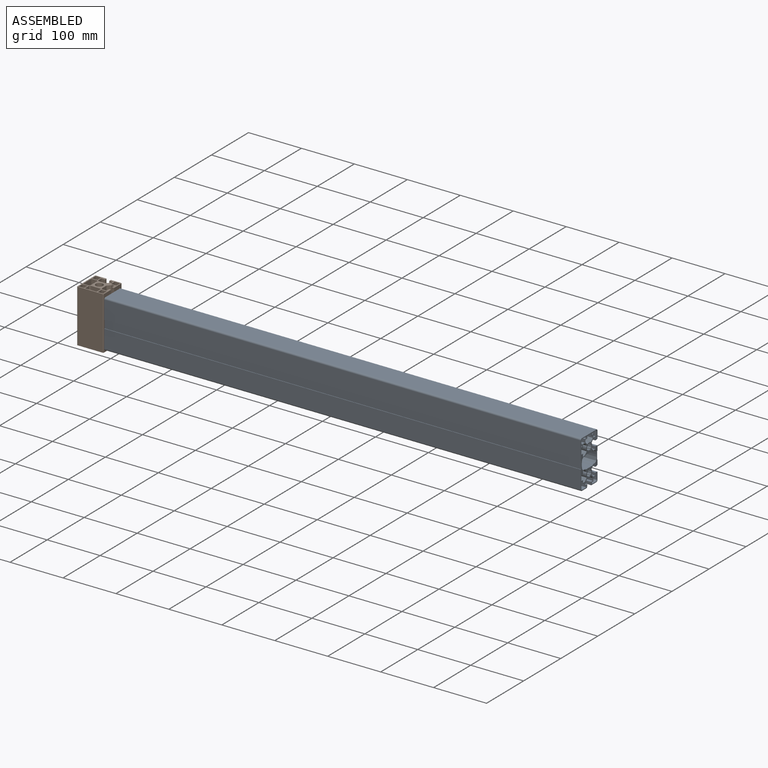
[diagram: assembled view]
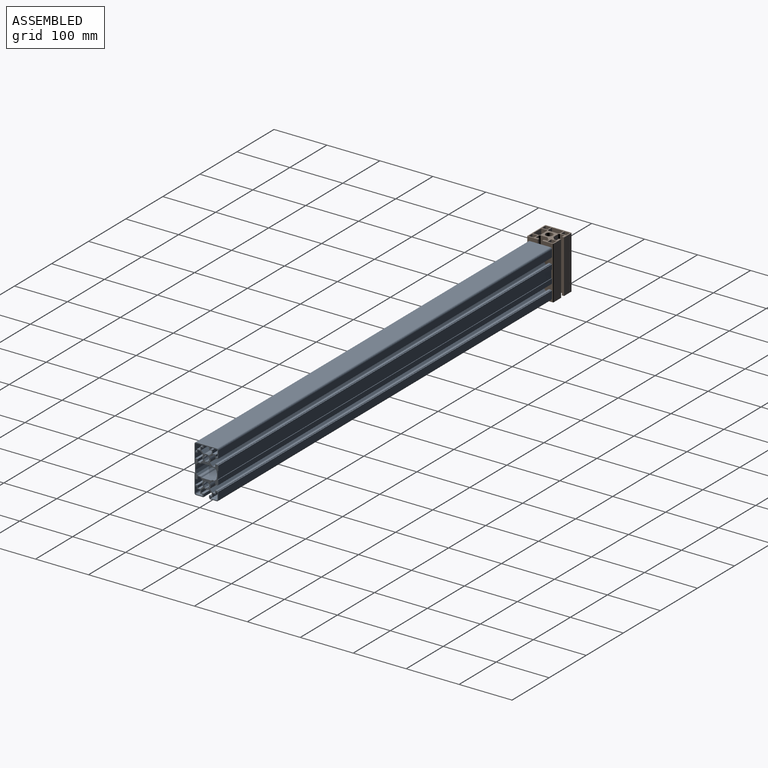
[diagram: assembled view, second angle]
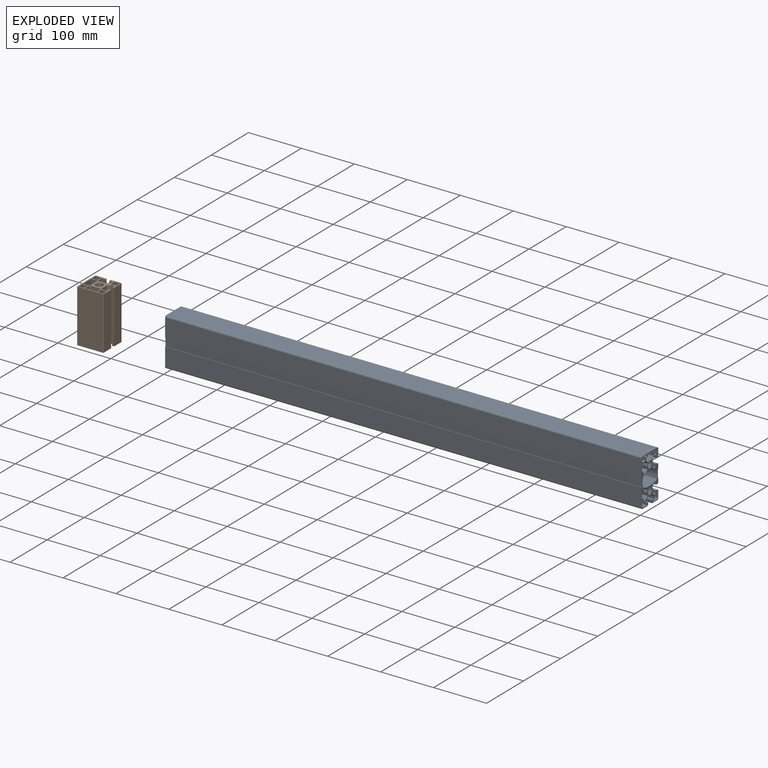
[diagram: exploded view]
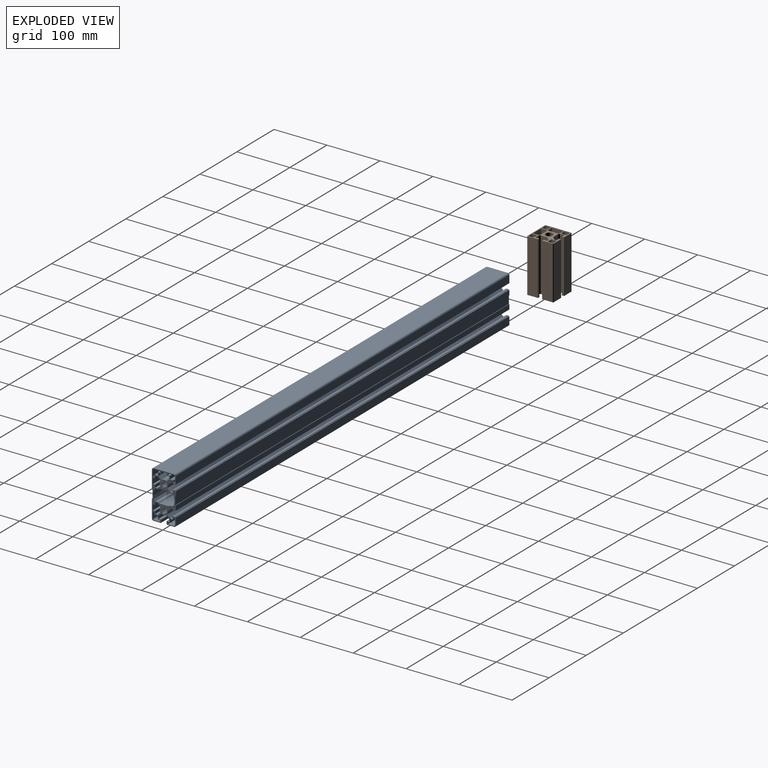
[diagram: exploded view, second angle]
ASSEMBLY  parts=2 mates=2
PART A: 210 faces, bbox 900x90x45 mm
  f0: cylinder r=8mm len=900mm, axis (-1,0,0), area 9202.1mm2, adj f1,f9,f208,f209
  f1: plane 900x5.28mm, normal (0,-0.71,0.71), area 6718.6mm2, adj f0,f2,f208,f209
  f2: plane 900x4.8mm, normal (0,0,1), area 4320mm2, adj f1,f3,f208,f209
  f3: plane 900x5.05mm, normal (0,1,0), area 4545mm2, adj f2,f4,f208,f209
  f4: plane 900x4.5mm, normal (0,0,1), area 4050mm2, adj f3,f5,f208,f209
  f5: plane 900x10mm, normal (0,1,0), area 9000mm2, adj f4,f6,f208,f209
  f6: plane 900x4.5mm, normal (0,0,-1), area 4050mm2, adj f5,f7,f208,f209
  f7: plane 900x5.05mm, normal (0,1,0), area 4545mm2, adj f6,f8,f208,f209
  f8: plane 900x4.8mm, normal (0,0,-1), area 4320mm2, adj f7,f9,f208,f209
  f9: plane 900x5.28mm, normal (0,-0.71,-0.71), area 6718.6mm2, adj f0,f8,f208,f209
  f10: plane 900x5.28mm, normal (0,0.71,-0.71), area 6718.6mm2, adj f11,f19,f208,f209
  f11: cylinder r=8mm len=900mm, axis (-1,0,0), area 9202.1mm2, adj f10,f12,f208,f209
  f12: plane 900x5.28mm, normal (0,-0.71,-0.71), area 6718.6mm2, adj f11,f13,f208,f209
  f13: plane 900x4.8mm, normal (0,-1,0), area 4320mm2, adj f12,f14,f208,f209
  f14: plane 900x5.05mm, normal (0,0,1), area 4545mm2, adj f13,f15,f208,f209
  f15: plane 900x4.5mm, normal (0,-1,0), area 4050mm2, adj f14,f16,f208,f209
  f16: plane 900x10mm, normal (0,0,1), area 9000mm2, adj f15,f17,f208,f209
  f17: plane 900x4.5mm, normal (0,1,0), area 4050mm2, adj f16,f18,f208,f209
  f18: plane 900x5.05mm, normal (0,0,1), area 4545mm2, adj f17,f19,f208,f209
  f19: plane 900x4.8mm, normal (0,1,0), area 4320mm2, adj f10,f18,f208,f209
  f20: plane 900x5.28mm, normal (0,-0.71,-0.71), area 6718.6mm2, adj f21,f29,f208,f209
  f21: cylinder r=8mm len=900mm, axis (1,0,0), area 9202.1mm2, adj f20,f22,f208,f209
  f22: plane 900x5.28mm, normal (0,0.71,-0.71), area 6718.6mm2, adj f21,f23,f208,f209
  f23: plane 900x4.8mm, normal (0,1,0), area 4320mm2, adj f22,f24,f208,f209
  f24: plane 900x5.05mm, normal (0,0,1), area 4545mm2, adj f23,f25,f208,f209
  f25: plane 900x4.5mm, normal (0,1,0), area 4050mm2, adj f24,f26,f208,f209
  f26: plane 900x10mm, normal (0,0,1), area 9000mm2, adj f25,f27,f208,f209
  f27: plane 900x4.5mm, normal (0,-1,0), area 4050mm2, adj f26,f28,f208,f209
  f28: plane 900x5.05mm, normal (0,0,1), area 4545mm2, adj f27,f29,f208,f209
  f29: plane 900x4.8mm, normal (0,-1,0), area 4320mm2, adj f20,f28,f208,f209
  f30: plane 900x4.05mm, normal (0,1,0), area 3645mm2, adj f31,f38,f208,f209
  f31: plane 900x3mm, normal (0,0,-1), area 2700mm2, adj f30,f32,f208,f209
  f32: plane 900x11mm, normal (0,-1,0), area 9900mm2, adj f31,f33,f208,f209
  f33: cylinder r=2.5mm len=900mm, axis (-1,0,0), area 3534.3mm2, adj f32,f34,f208,f209
  f34: plane 900x11mm, normal (0,0,1), area 9900mm2, adj f33,f35,f208,f209
  f35: plane 900x3mm, normal (0,1,0), area 2700mm2, adj f34,f36,f208,f209
  f36: plane 900x4.05mm, normal (0,0,-1), area 3645mm2, adj f35,f37,f208,f209
  f37: plane 900x6.45mm, normal (0,1,0), area 5805mm2, adj f36,f38,f208,f209
  f38: plane 900x6.45mm, normal (0,0,-1), area 5805mm2, adj f30,f37,f208,f209
  f39: plane 900x4.05mm, normal (0,-1,0), area 3645mm2, adj f40,f47,f208,f209
  f40: plane 900x3mm, normal (0,0,1), area 2700mm2, adj f39,f41,f208,f209
  f41: plane 900x11mm, normal (0,1,0), area 9900mm2, adj f40,f42,f208,f209
  f42: cylinder r=2.5mm len=900mm, axis (-1,0,0), area 3534.3mm2, adj f41,f43,f208,f209
  f43: plane 900x11mm, normal (0,0,-1), area 9900mm2, adj f42,f44,f208,f209
  f44: plane 900x3mm, normal (0,-1,0), area 2700mm2, adj f43,f45,f208,f209
  f45: plane 900x4.05mm, normal (0,0,1), area 3645mm2, adj f44,f46,f208,f209
  f46: plane 900x6.45mm, normal (0,-1,0), area 5805mm2, adj f45,f47,f208,f209
  f47: plane 900x6.45mm, normal (0,0,1), area 5805mm2, adj f39,f46,f208,f209
  f48: plane 900x4.05mm, normal (0,1,0), area 3645mm2, adj f49,f56,f208,f209
  f49: plane 900x3mm, normal (0,0,1), area 2700mm2, adj f48,f50,f208,f209
  f50: plane 900x11mm, normal (0,-1,0), area 9900mm2, adj f49,f51,f208,f209
  f51: cylinder r=2.5mm len=900mm, axis (1,0,0), area 3534.3mm2, adj f50,f52,f208,f209
  f52: plane 900x11mm, normal (0,0,-1), area 9900mm2, adj f51,f53,f208,f209
  f53: plane 900x3mm, normal (0,1,0), area 2700mm2, adj f52,f54,f208,f209
  f54: plane 900x4.05mm, normal (0,0,1), area 3645mm2, adj f53,f55,f208,f209
  f55: plane 900x6.45mm, normal (0,1,0), area 5805mm2, adj f54,f56,f208,f209
  f56: plane 900x6.45mm, normal (0,0,1), area 5805mm2, adj f48,f55,f208,f209
  f57: plane 900x4.05mm, normal (0,-1,0), area 3645mm2, adj f58,f65,f208,f209
  f58: plane 900x3mm, normal (0,0,-1), area 2700mm2, adj f57,f59,f208,f209
  f59: plane 900x11mm, normal (0,1,0), area 9900mm2, adj f58,f60,f208,f209
  f60: cylinder r=2.5mm len=900mm, axis (1,0,0), area 3534.3mm2, adj f59,f61,f208,f209
  f61: plane 900x11mm, normal (0,0,1), area 9900mm2, adj f60,f62,f208,f209
  f62: plane 900x3mm, normal (0,-1,0), area 2700mm2, adj f61,f63,f208,f209
  f63: plane 900x4.05mm, normal (0,0,-1), area 3645mm2, adj f62,f64,f208,f209
  f64: plane 900x6.45mm, normal (0,-1,0), area 5805mm2, adj f63,f65,f208,f209
  f65: plane 900x6.45mm, normal (0,0,-1), area 5805mm2, adj f57,f64,f208,f209
  f66: plane 900x5.23mm, normal (0,1,0), area 4703.6mm2, adj f67,f85,f208,f209
  f67: plane 900x3mm, normal (0,0.71,-0.71), area 3820mm2, adj f66,f68,f208,f209
  f68: plane 900x6.05mm, normal (0,0.19,-0.98), area 5545.9mm2, adj f67,f69,f208,f209
  f69: plane 900x3.79mm, normal (0,0,-1), area 3413.6mm2, adj f68,f70,f208,f209
  f70: plane 900x6.05mm, normal (0,-0.19,-0.98), area 5545.9mm2, adj f69,f71,f208,f209
  f71: plane 900x3mm, normal (0,-0.71,-0.71), area 3820mm2, adj f70,f72,f208,f209
  f72: plane 900x5.23mm, normal (0,-1,0), area 4703.6mm2, adj f71,f73,f208,f209
  f73: plane 900x1.72mm, normal (0,-0.74,-0.67), area 2084.8mm2, adj f72,f74,f208,f209
  f74: plane 900x17.79mm, normal (0,-1,0), area 16007.1mm2, adj f73,f75,f208,f209
  f75: plane 900x1.72mm, normal (0,-0.74,0.67), area 2084.8mm2, adj f74,f76,f208,f209
  f76: plane 900x5.23mm, normal (0,-1,0), area 4703.6mm2, adj f75,f77,f208,f209
  f77: plane 900x3mm, normal (0,-0.71,0.71), area 3820mm2, adj f76,f78,f208,f209
  f78: plane 900x6.05mm, normal (0,-0.19,0.98), area 5545.9mm2, adj f77,f79,f208,f209
  f79: plane 900x3.79mm, normal (0,0,1), area 3413.6mm2, adj f78,f80,f208,f209
  f80: plane 900x6.05mm, normal (0,0.19,0.98), area 5545.9mm2, adj f79,f81,f208,f209
  f81: plane 900x3mm, normal (0,0.71,0.71), area 3820mm2, adj f80,f82,f208,f209
  f82: plane 900x5.23mm, normal (0,1,0), area 4703.6mm2, adj f81,f83,f208,f209
  f83: plane 900x1.72mm, normal (0,0.74,0.67), area 2084.8mm2, adj f82,f84,f208,f209
  f84: plane 900x17.79mm, normal (0,1,0), area 16007.1mm2, adj f83,f85,f208,f209
  f85: plane 900x1.72mm, normal (0,0.74,-0.67), area 2084.8mm2, adj f66,f84,f208,f209
  f86: plane 900x1.08mm, normal (0,-0.17,-0.98), area 990mm2, adj f87,f117,f208,f209
  f87: cylinder r=5mm len=900mm, axis (1,0,0), area 1570.8mm2, adj f86,f88,f208,f209
  f88: plane 900x1.08mm, normal (0,-0.17,0.98), area 990mm2, adj f87,f89,f208,f209
  f89: cylinder r=6.1mm len=900mm, axis (1,0,0), area 2395.5mm2, adj f88,f90,f208,f209
  f90: plane 900x0.9mm, normal (0,0.57,-0.82), area 990mm2, adj f89,f91,f208,f209
  f91: cylinder r=5mm len=900mm, axis (1,0,0), area 1570.8mm2, adj f90,f92,f208,f209
  f92: plane 900x0.9mm, normal (0,-0.82,0.57), area 990mm2, adj f91,f93,f208,f209
  f93: cylinder r=6.1mm len=900mm, axis (1,0,0), area 2395.5mm2, adj f92,f94,f208,f209
  f94: plane 900x1.08mm, normal (0,0.98,-0.17), area 990mm2, adj f93,f95,f208,f209
  f95: cylinder r=5mm len=900mm, axis (1,0,0), area 1570.8mm2, adj f94,f96,f208,f209
  f96: plane 900x1.08mm, normal (0,-0.98,-0.17), area 990mm2, adj f95,f97,f208,f209
  f97: cylinder r=6.1mm len=900mm, axis (1,0,0), area 2395.5mm2, adj f96,f98,f208,f209
  f98: plane 900x0.9mm, normal (0,0.82,0.57), area 990mm2, adj f97,f99,f208,f209
  f99: cylinder r=5mm len=900mm, axis (1,0,0), area 1570.8mm2, adj f98,f100,f208,f209
  f100: plane 900x0.9mm, normal (0,-0.57,-0.82), area 990mm2, adj f99,f101,f208,f209
  f101: cylinder r=6.1mm len=900mm, axis (1,0,0), area 2395.5mm2, adj f100,f102,f208,f209
  f102: plane 900x1.08mm, normal (0,0.17,0.98), area 990mm2, adj f101,f103,f208,f209
  f103: cylinder r=5mm len=900mm, axis (1,0,0), area 1570.8mm2, adj f102,f104,f208,f209
  f104: plane 900x1.08mm, normal (0,0.17,-0.98), area 990mm2, adj f103,f105,f208,f209
  f105: cylinder r=6.1mm len=900mm, axis (1,0,0), area 2395.5mm2, adj f104,f106,f208,f209
  f106: plane 900x0.9mm, normal (0,-0.57,0.82), area 990mm2, adj f105,f107,f208,f209
  f107: cylinder r=5mm len=900mm, axis (1,0,0), area 1570.8mm2, adj f106,f108,f208,f209
  f108: plane 900x0.9mm, normal (0,0.82,-0.57), area 990mm2, adj f107,f109,f208,f209
  f109: cylinder r=6.1mm len=900mm, axis (1,0,0), area 2395.5mm2, adj f108,f110,f208,f209
  f110: plane 900x1.08mm, normal (0,-0.98,0.17), area 990mm2, adj f109,f111,f208,f209
  f111: cylinder r=5mm len=900mm, axis (1,0,0), area 1570.8mm2, adj f110,f112,f208,f209
  f112: plane 900x1.08mm, normal (0,0.98,0.17), area 990mm2, adj f111,f113,f208,f209
  f113: cylinder r=6.1mm len=900mm, axis (1,0,0), area 2395.5mm2, adj f112,f114,f208,f209
  f114: plane 900x0.9mm, normal (0,-0.82,-0.57), area 990mm2, adj f113,f115,f208,f209
  f115: cylinder r=5mm len=900mm, axis (1,0,0), area 1570.8mm2, adj f114,f116,f208,f209
  f116: plane 900x0.9mm, normal (0,0.57,0.82), area 990mm2, adj f115,f117,f208,f209
  f117: cylinder r=6.1mm len=900mm, axis (1,0,0), area 2395.5mm2, adj f86,f116,f208,f209
  f118: plane 900x1.08mm, normal (0,-0.17,-0.98), area 990mm2, adj f119,f149,f208,f209
  f119: cylinder r=5mm len=900mm, axis (1,0,0), area 1570.8mm2, adj f118,f120,f208,f209
  f120: plane 900x1.08mm, normal (0,-0.17,0.98), area 990mm2, adj f119,f121,f208,f209
  f121: cylinder r=6.1mm len=900mm, axis (1,0,0), area 2395.5mm2, adj f120,f122,f208,f209
  f122: plane 900x0.9mm, normal (0,0.57,-0.82), area 990mm2, adj f121,f123,f208,f209
  f123: cylinder r=5mm len=900mm, axis (1,0,0), area 1570.8mm2, adj f122,f124,f208,f209
  f124: plane 900x0.9mm, normal (0,-0.82,0.57), area 990mm2, adj f123,f125,f208,f209
  f125: cylinder r=6.1mm len=900mm, axis (1,0,0), area 2395.5mm2, adj f124,f126,f208,f209
  f126: plane 900x1.08mm, normal (0,0.98,-0.17), area 990mm2, adj f125,f127,f208,f209
  f127: cylinder r=5mm len=900mm, axis (1,0,0), area 1570.8mm2, adj f126,f128,f208,f209
  f128: plane 900x1.08mm, normal (0,-0.98,-0.17), area 990mm2, adj f127,f129,f208,f209
  f129: cylinder r=6.1mm len=900mm, axis (1,0,0), area 2395.5mm2, adj f128,f130,f208,f209
  f130: plane 900x0.9mm, normal (0,0.82,0.57), area 990mm2, adj f129,f131,f208,f209
  f131: cylinder r=5mm len=900mm, axis (1,0,0), area 1570.8mm2, adj f130,f132,f208,f209
  f132: plane 900x0.9mm, normal (0,-0.57,-0.82), area 990mm2, adj f131,f133,f208,f209
  f133: cylinder r=6.1mm len=900mm, axis (1,0,0), area 2395.5mm2, adj f132,f134,f208,f209
  f134: plane 900x1.08mm, normal (0,0.17,0.98), area 990mm2, adj f133,f135,f208,f209
  f135: cylinder r=5mm len=900mm, axis (1,0,0), area 1570.8mm2, adj f134,f136,f208,f209
  f136: plane 900x1.08mm, normal (0,0.17,-0.98), area 990mm2, adj f135,f137,f208,f209
  f137: cylinder r=6.1mm len=900mm, axis (1,0,0), area 2395.5mm2, adj f136,f138,f208,f209
  f138: plane 900x0.9mm, normal (0,-0.57,0.82), area 990mm2, adj f137,f139,f208,f209
  f139: cylinder r=5mm len=900mm, axis (1,0,0), area 1570.8mm2, adj f138,f140,f208,f209
  f140: plane 900x0.9mm, normal (0,0.82,-0.57), area 990mm2, adj f139,f141,f208,f209
  f141: cylinder r=6.1mm len=900mm, axis (1,0,0), area 2395.5mm2, adj f140,f142,f208,f209
  f142: plane 900x1.08mm, normal (0,-0.98,0.17), area 990mm2, adj f141,f143,f208,f209
  f143: cylinder r=5mm len=900mm, axis (1,0,0), area 1570.8mm2, adj f142,f144,f208,f209
  f144: plane 900x1.08mm, normal (0,0.98,0.17), area 990mm2, adj f143,f145,f208,f209
  f145: cylinder r=6.1mm len=900mm, axis (1,0,0), area 2395.5mm2, adj f144,f146,f208,f209
  f146: plane 900x0.9mm, normal (0,-0.82,-0.57), area 990mm2, adj f145,f147,f208,f209
  f147: cylinder r=5mm len=900mm, axis (1,0,0), area 1570.8mm2, adj f146,f148,f208,f209
  f148: plane 900x0.9mm, normal (0,0.57,0.82), area 990mm2, adj f147,f149,f208,f209
  f149: cylinder r=6.1mm len=900mm, axis (1,0,0), area 2395.5mm2, adj f118,f148,f208,f209
  f150: plane 900x5.28mm, normal (0,0.71,0.71), area 6718.6mm2, adj f151,f207,f208,f209
  f151: plane 900x4.8mm, normal (0,1,0), area 4320mm2, adj f150,f152,f208,f209
  f152: plane 900x5.05mm, normal (0,0,-1), area 4545mm2, adj f151,f153,f208,f209
  f153: plane 900x4.5mm, normal (0,1,0), area 4050mm2, adj f152,f154,f208,f209
  f154: plane 900x0.8mm, normal (0,0,1), area 720mm2, adj f153,f155,f208,f209
  f155: plane 900x1.5mm, normal (0,1,0), area 1350mm2, adj f154,f156,f208,f209
  f156: plane 900x13.7mm, normal (0,0,1), area 12330mm2, adj f155,f157,f208,f209
  f157: cylinder r=3mm len=900mm, axis (1,0,0), area 4241.2mm2, adj f156,f158,f208,f209
  f158: plane 900x39mm, normal (0,-1,0), area 35100mm2, adj f157,f159,f208,f209
  f159: cylinder r=3mm len=900mm, axis (1,0,0), area 4241.2mm2, adj f158,f160,f208,f209
  f160: plane 900x34.5mm, normal (0,0,-1), area 31050mm2, adj f159,f161,f208,f209
  f161: plane 900x1mm, normal (0,1,0), area 900mm2, adj f160,f162,f208,f209
  f162: plane 900x15mm, normal (0,0,-1), area 13500mm2, adj f161,f163,f208,f209
  f163: plane 900x1mm, normal (0,-1,0), area 900mm2, adj f162,f164,f208,f209
  f164: plane 900x34.5mm, normal (0,0,-1), area 31050mm2, adj f163,f165,f208,f209
  f165: cylinder r=3mm len=900mm, axis (1,0,0), area 4241.2mm2, adj f164,f166,f208,f209
  f166: plane 900x13.7mm, normal (0,1,0), area 12330mm2, adj f165,f167,f208,f209
  f167: plane 900x1.5mm, normal (0,0,1), area 1350mm2, adj f166,f168,f208,f209
  f168: plane 900x0.8mm, normal (0,1,0), area 720mm2, adj f167,f169,f208,f209
  f169: plane 900x4.5mm, normal (0,0,1), area 4050mm2, adj f168,f170,f208,f209
  f170: plane 900x5.05mm, normal (0,-1,0), area 4545mm2, adj f169,f171,f208,f209
  f171: plane 900x4.8mm, normal (0,0,1), area 4320mm2, adj f170,f172,f208,f209
  f172: plane 900x5.28mm, normal (0,0.71,0.71), area 6718.6mm2, adj f171,f173,f208,f209
  f173: cylinder r=8mm len=900mm, axis (1,0,0), area 9202.1mm2, adj f172,f174,f208,f209
  f174: plane 900x5.28mm, normal (0,0.71,-0.71), area 6718.6mm2, adj f173,f175,f208,f209
  f175: plane 900x4.8mm, normal (0,0,-1), area 4320mm2, adj f174,f176,f208,f209
  f176: plane 900x5.05mm, normal (0,-1,0), area 4545mm2, adj f175,f177,f208,f209
  f177: plane 900x4.5mm, normal (0,0,-1), area 4050mm2, adj f176,f178,f208,f209
  f178: plane 900x0.8mm, normal (0,1,0), area 720mm2, adj f177,f179,f208,f209
  f179: plane 900x1.5mm, normal (0,0,-1), area 1350mm2, adj f178,f180,f208,f209
  f180: plane 900x13.7mm, normal (0,1,0), area 12330mm2, adj f179,f181,f208,f209
  f181: cylinder r=3mm len=900mm, axis (1,0,0), area 4241.2mm2, adj f180,f182,f208,f209
  f182: plane 900x13.7mm, normal (0,0,1), area 12330mm2, adj f181,f183,f208,f209
  f183: plane 900x1.5mm, normal (0,-1,0), area 1350mm2, adj f182,f184,f208,f209
  f184: plane 900x0.8mm, normal (0,0,1), area 720mm2, adj f183,f185,f208,f209
  f185: plane 900x4.5mm, normal (0,-1,0), area 4050mm2, adj f184,f186,f208,f209
  f186: plane 900x5.05mm, normal (0,0,-1), area 4545mm2, adj f185,f187,f208,f209
  f187: plane 900x4.8mm, normal (0,-1,0), area 4320mm2, adj f186,f188,f208,f209
  f188: plane 900x5.28mm, normal (0,-0.71,0.71), area 6718.6mm2, adj f187,f189,f208,f209
  f189: cylinder r=8mm len=900mm, axis (1,0,0), area 9202.1mm2, adj f188,f190,f208,f209
  f190: plane 900x5.28mm, normal (0,0.71,0.71), area 6718.6mm2, adj f189,f191,f208,f209
  f191: plane 900x4.8mm, normal (0,1,0), area 4320mm2, adj f190,f192,f208,f209
  f192: plane 900x5.05mm, normal (0,0,-1), area 4545mm2, adj f191,f193,f208,f209
  f193: plane 900x4.5mm, normal (0,1,0), area 4050mm2, adj f192,f194,f208,f209
  f194: plane 900x0.8mm, normal (0,0,1), area 720mm2, adj f193,f195,f208,f209
  f195: plane 900x1.5mm, normal (0,1,0), area 1350mm2, adj f194,f196,f208,f209
  f196: plane 900x9.2mm, normal (0,0,1), area 8280mm2, adj f195,f197,f208,f209
  f197: plane 900x1mm, normal (0,-1,0), area 900mm2, adj f196,f198,f208,f209
  f198: plane 900x15mm, normal (0,0,1), area 13500mm2, adj f197,f199,f208,f209
  f199: plane 900x1mm, normal (0,1,0), area 900mm2, adj f198,f200,f208,f209
  f200: plane 900x9.2mm, normal (0,0,1), area 8280mm2, adj f199,f201,f208,f209
  f201: plane 900x1.5mm, normal (0,-1,0), area 1350mm2, adj f200,f202,f208,f209
  f202: plane 900x0.8mm, normal (0,0,1), area 720mm2, adj f201,f203,f208,f209
  f203: plane 900x4.5mm, normal (0,-1,0), area 4050mm2, adj f202,f204,f208,f209
  f204: plane 900x5.05mm, normal (0,0,-1), area 4545mm2, adj f203,f205,f208,f209
  f205: plane 900x4.8mm, normal (0,-1,0), area 4320mm2, adj f204,f206,f208,f209
  f206: plane 900x5.28mm, normal (0,-0.71,0.71), area 6718.6mm2, adj f205,f207,f208,f209
  f207: cylinder r=8mm len=900mm, axis (1,0,0), area 9202.1mm2, adj f150,f206,f208,f209
  f208: plane 90x45mm, normal (1,0,0), area 1164.1mm2, adj f0,f1,f2,f3,f4,f5,f6,f7
  f209: plane 90x45mm, normal (-1,0,0), area 1164.1mm2, adj f0,f1,f2,f3,f4,f5,f6,f7
PART B: 63 faces, bbox 50x50x100 mm
  f0: plane 100x7mm, normal (1,0,0), area 700mm2, adj f1,f27,f56,f57
  f1: plane 100x4.5mm, normal (0,1,0), area 450mm2, adj f0,f2,f56,f57
  f2: plane 100x1.5mm, normal (-1,0,0), area 150mm2, adj f1,f3,f56,f57
  f3: plane 100x0.64mm, normal (0,1,0), area 63.6mm2, adj f2,f4,f56,f57
  f4: plane 100x5.36mm, normal (-0.71,0.71,0), area 758.6mm2, adj f3,f5,f56,f57
  f5: plane 100x13.22mm, normal (-1,0,0), area 1322.2mm2, adj f4,f6,f56,f57
  f6: plane 100x1.91mm, normal (-0.71,-0.71,0), area 270.7mm2, adj f5,f7,f56,f57
  f7: plane 100x8.59mm, normal (0,-1,0), area 858.6mm2, adj f6,f8,f56,f57
  f8: plane 100x7mm, normal (1,0,0), area 700mm2, adj f7,f9,f56,f57
  f9: plane 100x4mm, normal (0,-1,0), area 400mm2, adj f8,f10,f56,f57
  f10: plane 100x19.5mm, normal (-1,0,0), area 1950mm2, adj f9,f56,f57,f61
  f11: plane 100x47mm, normal (0,1,0), area 4700mm2, adj f56,f57,f61,f62
  f12: plane 100x47mm, normal (1,0,0), area 4700mm2, adj f56,f57,f59,f62
  f13: plane 100x19.5mm, normal (0,-1,0), area 1950mm2, adj f14,f56,f57,f59
  f14: plane 100x4mm, normal (-1,0,0), area 400mm2, adj f13,f15,f56,f57
  f15: plane 100x7mm, normal (0,1,0), area 700mm2, adj f14,f16,f56,f57
  f16: plane 100x8.59mm, normal (-1,0,0), area 858.6mm2, adj f15,f17,f56,f57
  f17: plane 100x1.91mm, normal (-0.71,-0.71,0), area 270.7mm2, adj f16,f18,f56,f57
  f18: plane 100x13.22mm, normal (0,-1,0), area 1322.2mm2, adj f17,f19,f56,f57
  f19: plane 100x5.36mm, normal (0.71,-0.71,0), area 758.6mm2, adj f18,f20,f56,f57
  f20: plane 100x0.64mm, normal (1,0,0), area 63.6mm2, adj f19,f21,f56,f57
  f21: plane 100x1.5mm, normal (0,-1,0), area 150mm2, adj f20,f22,f56,f57
  f22: plane 100x4.5mm, normal (1,0,0), area 450mm2, adj f21,f23,f56,f57
  f23: plane 100x7mm, normal (0,1,0), area 700mm2, adj f22,f24,f56,f57
  f24: plane 100x4mm, normal (1,0,0), area 400mm2, adj f23,f25,f56,f57
  f25: plane 100x19.5mm, normal (0,-1,0), area 1950mm2, adj f24,f56,f57,f60
  f26: plane 100x19.5mm, normal (-1,0,0), area 1950mm2, adj f27,f56,f57,f60
  f27: plane 100x4mm, normal (0,1,0), area 400mm2, adj f0,f26,f56,f57
  f28: plane 100x10mm, normal (1,0,0), area 1000mm2, adj f29,f31,f56,f57
  f29: plane 100x10mm, normal (0,1,0), area 1000mm2, adj f28,f30,f56,f57
  f30: plane 100x10mm, normal (-1,0,0), area 1000mm2, adj f29,f31,f56,f57
  f31: plane 100x10mm, normal (0,-1,0), area 1000mm2, adj f28,f30,f56,f57
  f32: plane 100x10mm, normal (0,1,0), area 1000mm2, adj f33,f35,f56,f57
  f33: plane 100x10mm, normal (-1,0,0), area 1000mm2, adj f32,f34,f56,f57
  f34: plane 100x10mm, normal (0,-1,0), area 1000mm2, adj f33,f35,f56,f57
  f35: plane 100x10mm, normal (1,0,0), area 1000mm2, adj f32,f34,f56,f57
  f36: plane 100x10mm, normal (1,0,0), area 1000mm2, adj f37,f39,f56,f57
  f37: plane 100x10mm, normal (0,1,0), area 1000mm2, adj f36,f38,f56,f57
  f38: plane 100x10mm, normal (-1,0,0), area 1000mm2, adj f37,f39,f56,f57
  f39: plane 100x10mm, normal (0,-1,0), area 1000mm2, adj f36,f38,f56,f57
  f40: plane 100x10mm, normal (1,0,0), area 1000mm2, adj f41,f43,f56,f57
  f41: plane 100x10mm, normal (0,1,0), area 1000mm2, adj f40,f42,f56,f57
  f42: plane 100x10mm, normal (-1,0,0), area 1000mm2, adj f41,f43,f56,f57
  f43: plane 100x10mm, normal (0,-1,0), area 1000mm2, adj f40,f42,f56,f57
  f44: plane 100x18.17mm, normal (0,1,0), area 1817.2mm2, adj f45,f49,f56,f57
  f45: plane 100x1.91mm, normal (-0.71,0.71,0), area 270.7mm2, adj f44,f46,f56,f57
  f46: plane 100x10.59mm, normal (-1,0,0), area 1058.6mm2, adj f45,f47,f56,f57
  f47: plane 100x22mm, normal (0,-1,0), area 2200mm2, adj f46,f48,f56,f57
  f48: plane 100x10.59mm, normal (1,0,0), area 1058.6mm2, adj f47,f49,f56,f57
  f49: plane 100x1.91mm, normal (0.71,0.71,0), area 270.7mm2, adj f44,f48,f56,f57
  f50: plane 100x18.17mm, normal (1,0,0), area 1817.2mm2, adj f51,f55,f56,f57
  f51: plane 100x1.91mm, normal (0.71,0.71,0), area 270.7mm2, adj f50,f52,f56,f57
  f52: plane 100x10.59mm, normal (0,1,0), area 1058.6mm2, adj f51,f53,f56,f57
  f53: plane 100x22mm, normal (-1,0,0), area 2200mm2, adj f52,f54,f56,f57
  f54: plane 100x10.59mm, normal (0,-1,0), area 1058.6mm2, adj f53,f55,f56,f57
  f55: plane 100x1.91mm, normal (0.71,-0.71,0), area 270.7mm2, adj f50,f54,f56,f57
  f56: plane 50x50mm, normal (0,0,-1), area 932.4mm2, adj f0,f1,f2,f3,f4,f5,f6,f7
  f57: plane 50x50mm, normal (0,0,1), area 932.4mm2, adj f0,f1,f2,f3,f4,f5,f6,f7
  f58: cylinder r=6.85mm len=100mm, axis (0,0,1), area 4304mm2, adj f56,f57
  f59: cylinder r=1.5mm len=100mm, axis (0,0,1), area 235.6mm2, adj f12,f13,f56,f57
  f60: cylinder r=1.5mm len=100mm, axis (0,0,1), area 235.6mm2, adj f25,f26,f56,f57
  f61: cylinder r=1.5mm len=100mm, axis (0,0,1), area 235.6mm2, adj f10,f11,f56,f57
  f62: cylinder r=1.5mm len=100mm, axis (0,0,1), area 235.6mm2, adj f11,f12,f56,f57
PLACE A rot(axis=(-1,0,0),90deg) t=(-3.51,-89.8,25.7)mm
PLACE B rot(axis=(0,0,1),180deg) t=(-3.51,-64.8,-22.34)mm
MATE parallel B.f11 <-> A.f160  axis (0,-1,0) through (-28.51,-114.8,27.66)mm
MATE planar B.f10 <-> A.f209  axis (1,0,0) through (-3.51,-103.55,27.66)mm
